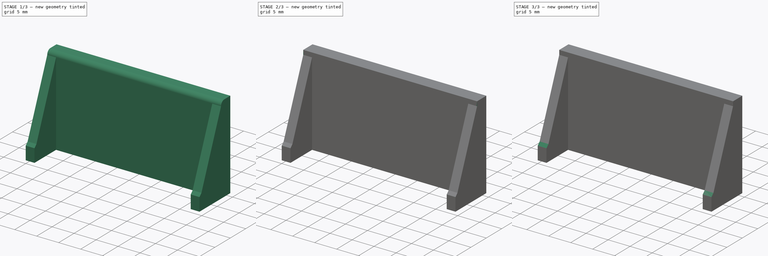
[diagram: build sequence overview — one tinted view per stage of 3, left to right]
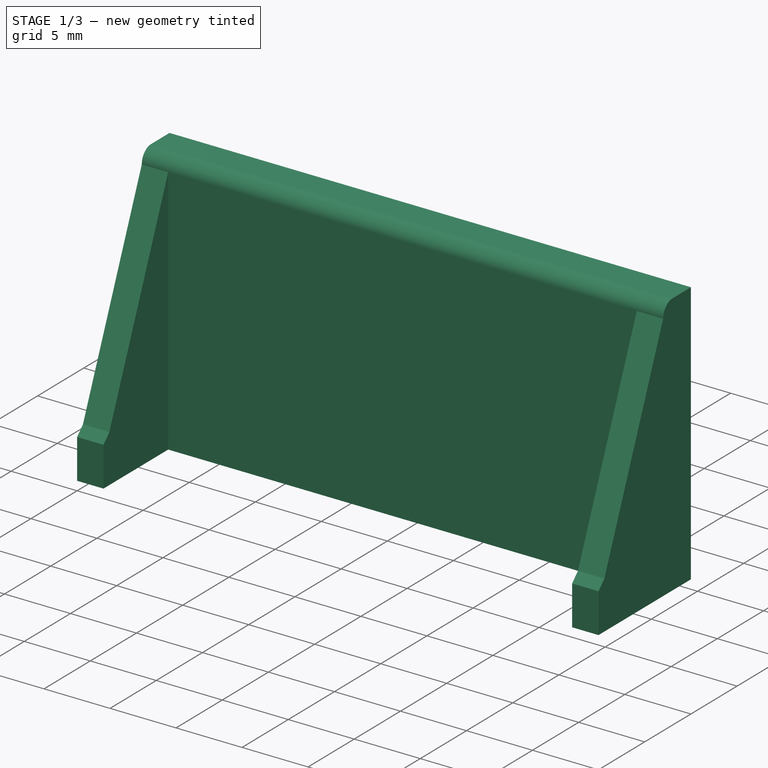
[diagram: stage 1 of 3 — iso view after this stage's code; geometry added in this stage tinted green]
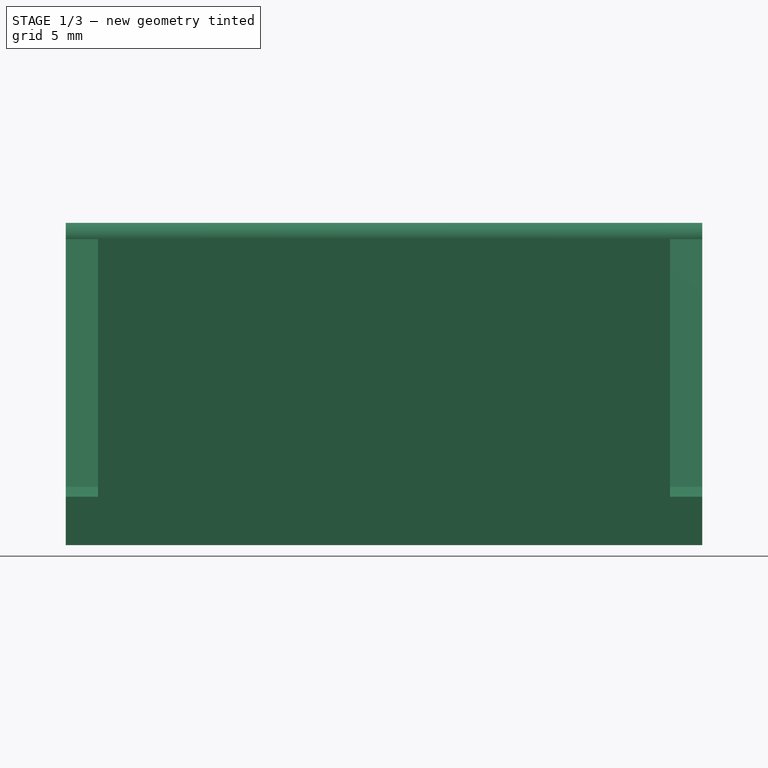
[diagram: stage 1 of 3 — front view after this stage's code; geometry added in this stage tinted green]
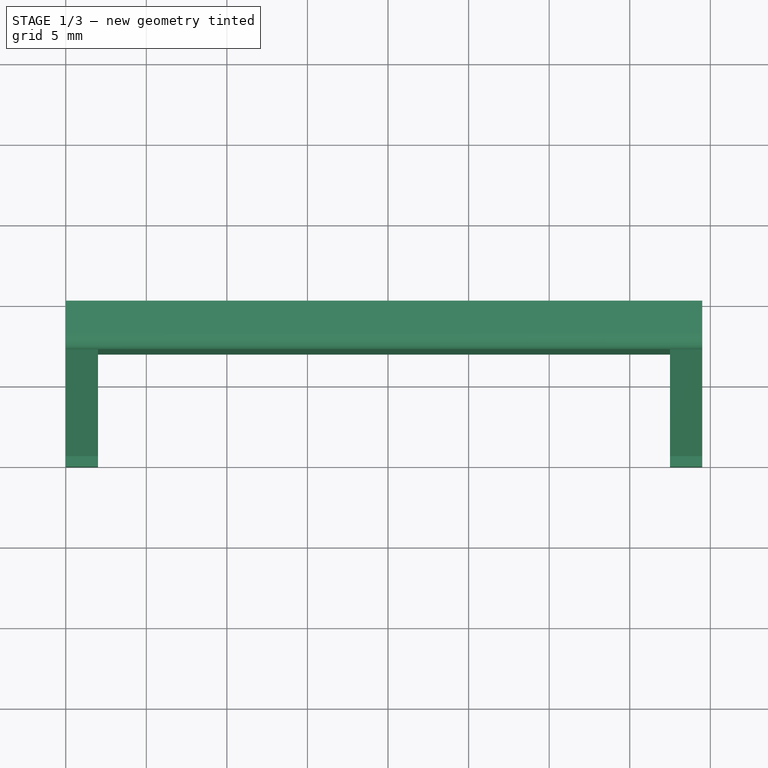
[diagram: stage 1 of 3 — top view after this stage's code; geometry added in this stage tinted green]
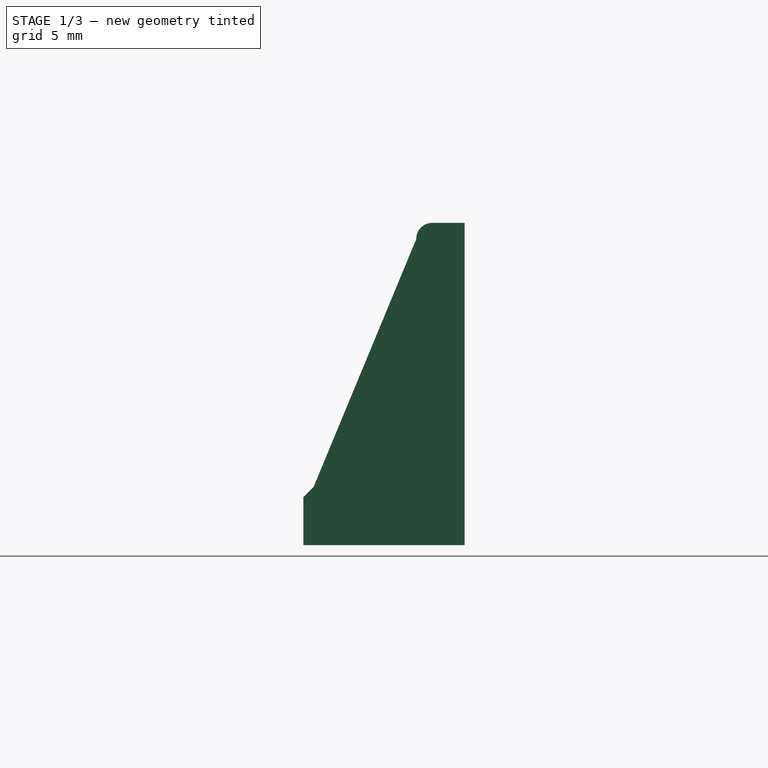
[diagram: stage 1 of 3 — right view after this stage's code; geometry added in this stage tinted green]
FCSTD DOCUMENT  (FreeCAD 0.15R4671 (Git))
Label: tope
License: All rights reserved
LicenseURL: http://en.wikipedia.org/wiki/All_rights_reserved
objects: PartDesign::Chamfer×4, Sketcher::SketchObject×2, PartDesign::Pad×2, Part::FeaturePython×1, Part::Feature×1, PartDesign::Fillet×1
note: 13 computed .brp shape members not serialized (recipe doc carries the construction recipe); baked Part::Feature solids carry a one-line shape summary decoded from their .brp

FEATURE [Part::Feature] Clone001  label="Clone of Chamfer002"
  shape: bbox 39.5 x 10 x 20 mm, 14 faces (baked)
FEATURE [PartDesign::Chamfer] Chamfer002
  Base = -> Clone001 [Edge7]
  Size = 9
FEATURE [PartDesign::Chamfer] Chamfer003
  Base = -> Chamfer002 [Edge7]
  Size = 9
FEATURE [PartDesign::Fillet] Fillet
  Base = -> Chamfer003 [Edge3]
  Radius = 1
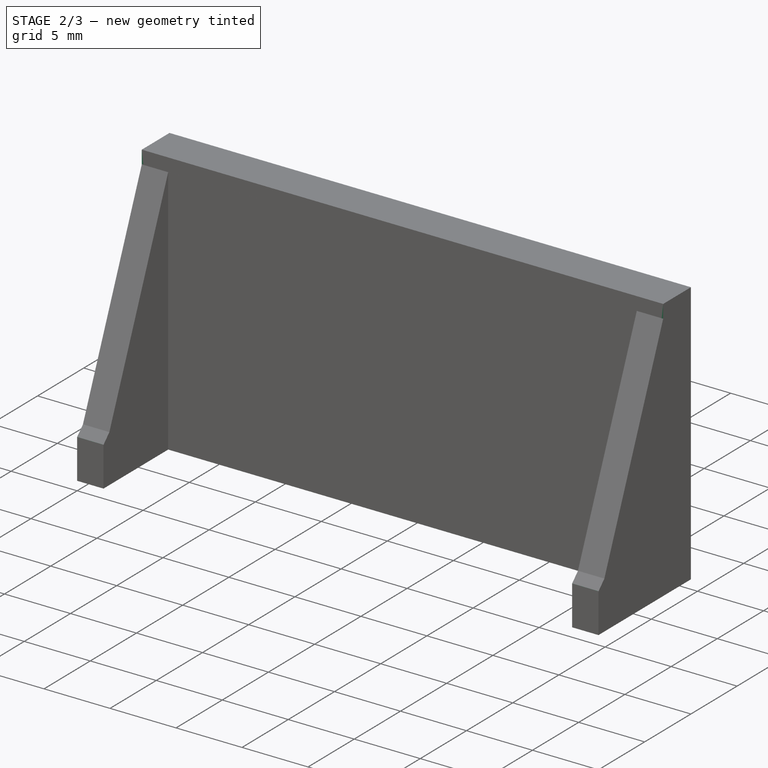
[diagram: stage 2 of 3 — iso view after this stage's code; geometry added in this stage tinted green]
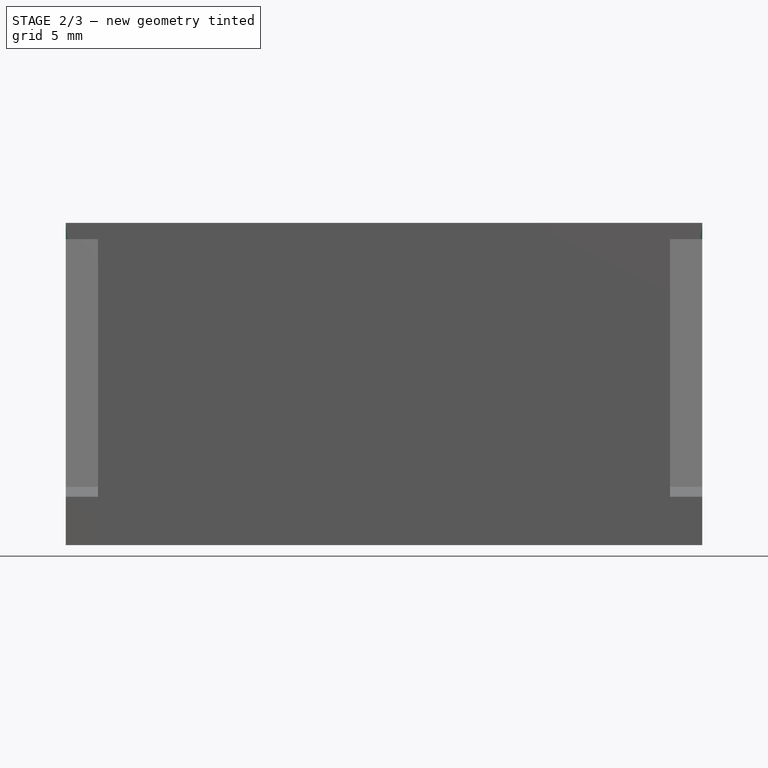
[diagram: stage 2 of 3 — front view after this stage's code; geometry added in this stage tinted green]
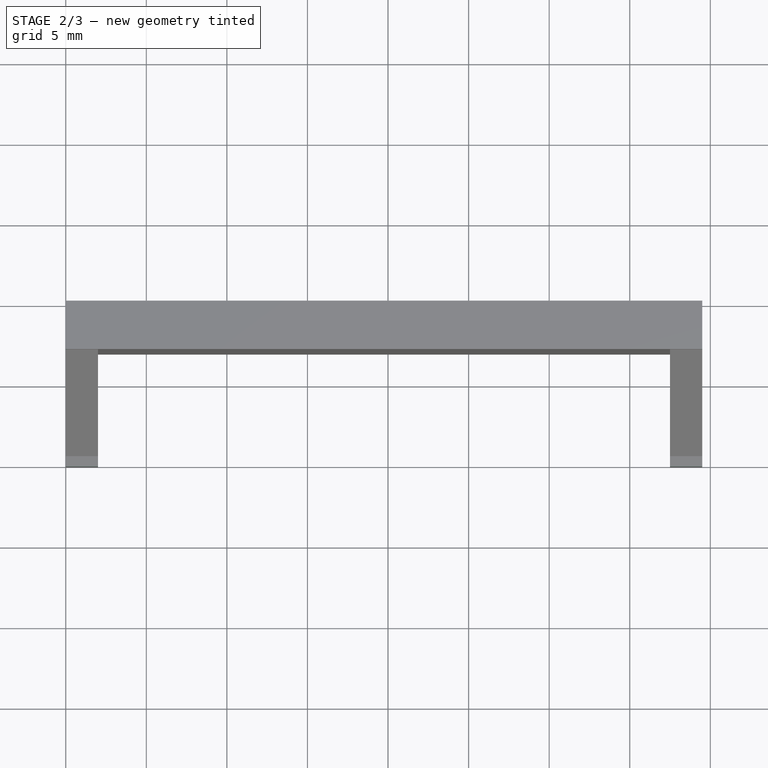
[diagram: stage 2 of 3 — top view after this stage's code; geometry added in this stage tinted green]
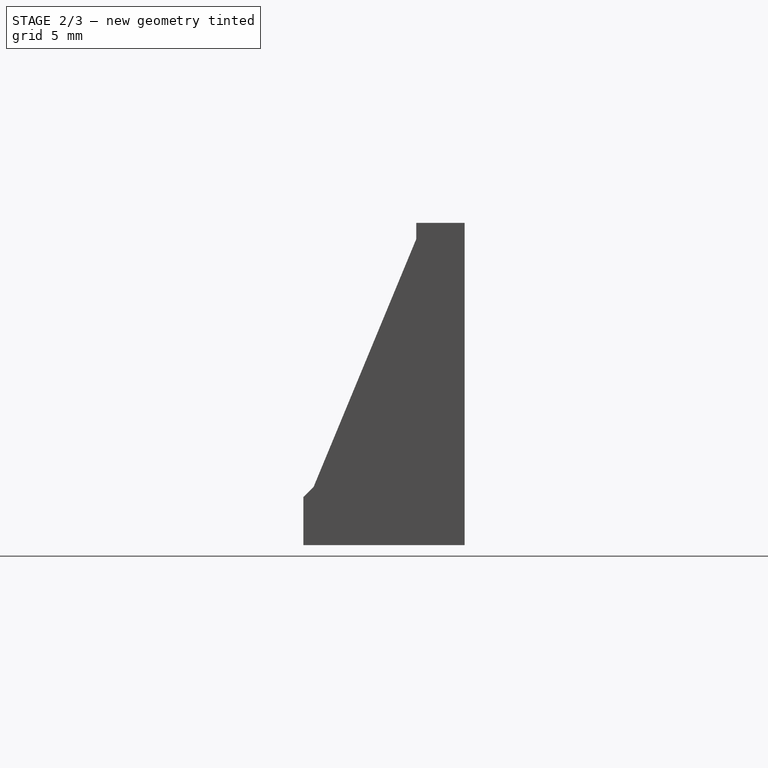
[diagram: stage 2 of 3 — right view after this stage's code; geometry added in this stage tinted green]
FEATURE [Sketcher::SketchObject] Sketch
  Placement = pos=(0,0,0) rot=(1,0,0;1.5708rad)
  sketch-geometry (4):
    g0: LineSegment StartX=0 StartY=20 StartZ=0 EndX=39.5 EndY=20 EndZ=0
    g1: LineSegment StartX=39.5 StartY=20 StartZ=0 EndX=39.5 EndY=0 EndZ=0
    g2: LineSegment StartX=39.5 StartY=0 StartZ=0 EndX=0 EndY=0 EndZ=0
    g3: LineSegment StartX=0 StartY=0 StartZ=0 EndX=0 EndY=20 EndZ=0
  constraints (11):
    c: Coincident(g0,g1)
    c: Coincident(g1,g2)
    c: Coincident(g2,g3)
    c: Coincident(g3,g0)
    c: Horizontal(g0)
    c: Horizontal(g2)
    c: Vertical(g1)
    c: Vertical(g3)
    c: DistanceX(g0) = 39.5
    c: DistanceY(g3) = 20
    c: Coincident(g-1,g2)
FEATURE [PartDesign::Pad] Pad
  Length = 3
  Length2 = 100
  Placement = pos=(0,0,0) rot=(1,0,0;1.5708rad)
  Sketch = -> Sketch
  Type = 0
FEATURE [Sketcher::SketchObject] Sketch001
  ExternalGeometry = -> [Pad]
  Placement = pos=(0,0,0) rot=(1,0,0;3.14159rad)
  Support = -> Pad [Face3]
  sketch-geometry (8):
    g0: LineSegment StartX=37.5 StartY=10 StartZ=0 EndX=39.5 EndY=10 EndZ=0
    g1: LineSegment StartX=39.5 StartY=10 StartZ=0 EndX=39.5 EndY=0 EndZ=0
    g2: LineSegment StartX=39.5 StartY=0 StartZ=0 EndX=37.5 EndY=0 EndZ=0
    g3: LineSegment StartX=37.5 StartY=0 StartZ=0 EndX=37.5 EndY=10 EndZ=0
    g4: LineSegment StartX=2 StartY=10 StartZ=0 EndX=0 EndY=10 EndZ=0
    g5: LineSegment StartX=0 StartY=10 StartZ=0 EndX=0 EndY=0 EndZ=0
    g6: LineSegment StartX=0 StartY=0 StartZ=0 EndX=2 EndY=0 EndZ=0
    g7: LineSegment StartX=2 StartY=0 StartZ=0 EndX=2 EndY=10 EndZ=0
  constraints (22):
    c: Coincident(g0,g1)
    c: Coincident(g1,g2)
    c: Coincident(g2,g3)
    c: Coincident(g3,g0)
    c: Horizontal(g0)
    c: Horizontal(g2)
    c: Vertical(g1)
    c: Vertical(g3)
    c: Coincident(g4,g5)
    c: Coincident(g5,g6)
    c: Coincident(g6,g7)
    c: Coincident(g7,g4)
    c: Horizontal(g4)
    c: Horizontal(g6)
    c: Vertical(g5)
    c: Vertical(g7)
    c: Coincident(g5,g-1)
    c: Coincident(g1,g-3)
    c: DistanceX(g0) = 2
    c: DistanceX(g4) = -2
    c: Equal(g3,g7)
    c: DistanceY(g1) = -10
FEATURE [PartDesign::Pad] Pad001
  Length = 3
  Length2 = 100
  Placement = pos=(0,0,0) rot=(1,0,0;1.5708rad)
  Reversed = true
  Sketch = -> Sketch001
  Type = 0
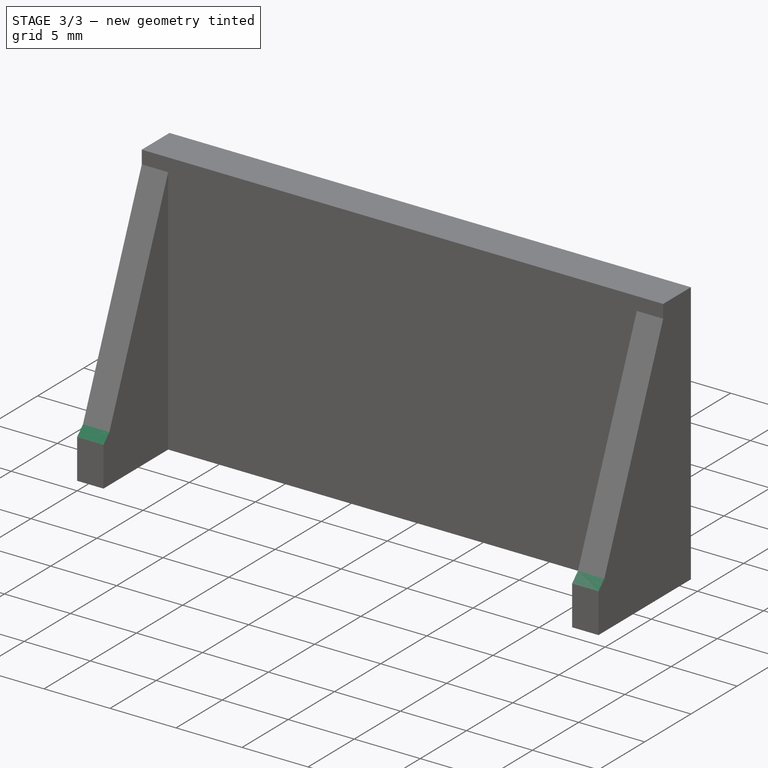
[diagram: stage 3 of 3 — iso view after this stage's code; geometry added in this stage tinted green]
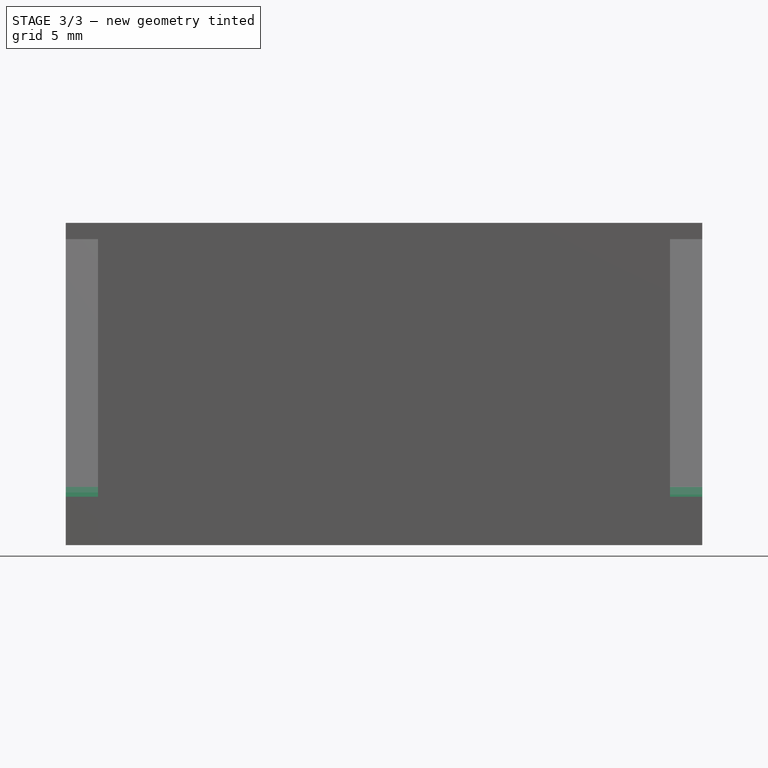
[diagram: stage 3 of 3 — front view after this stage's code; geometry added in this stage tinted green]
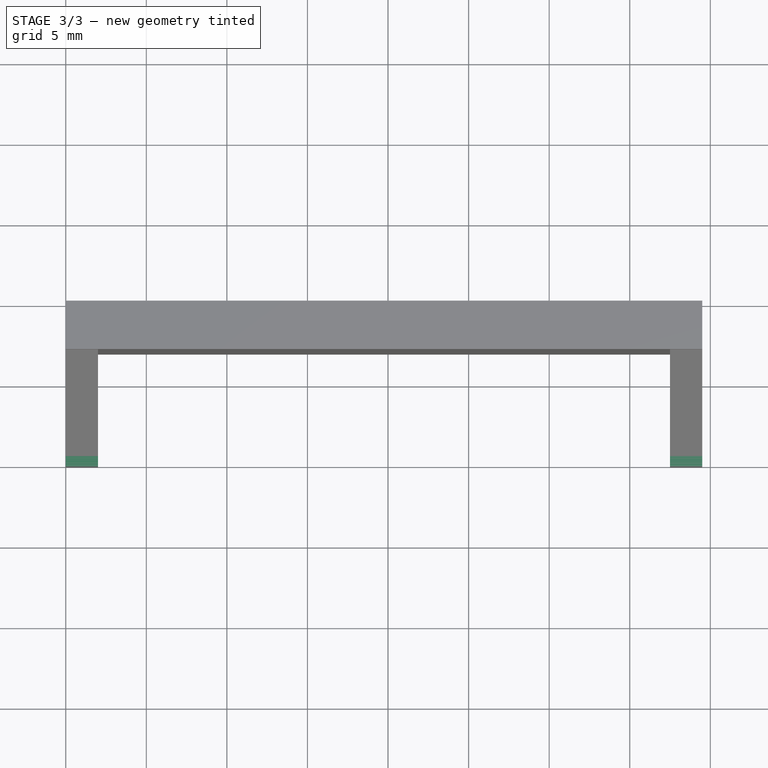
[diagram: stage 3 of 3 — top view after this stage's code; geometry added in this stage tinted green]
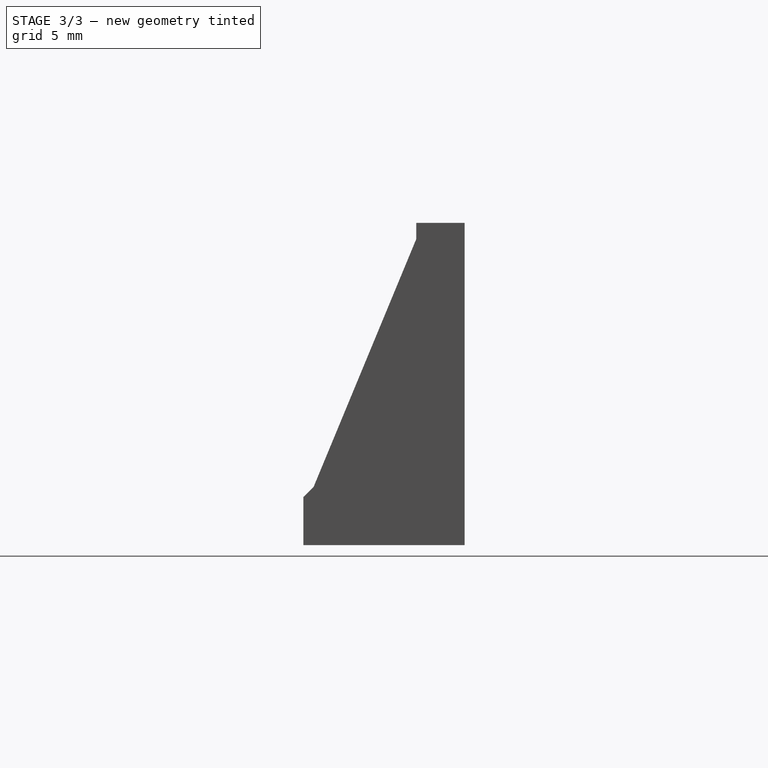
[diagram: stage 3 of 3 — right view after this stage's code; geometry added in this stage tinted green]
FEATURE [PartDesign::Chamfer] Chamfer
  Base = -> Pad001 [Edge16]
  Placement = pos=(0,0,0) rot=(1,0,0;1.5708rad)
  Size = 6.99
FEATURE [PartDesign::Chamfer] Chamfer001
  Base = -> Chamfer [Edge11]
  Placement = pos=(0,0,0) rot=(1,0,0;1.5708rad)
  Size = 6.99
FEATURE [Part::FeaturePython] Clone  label="Clone of Chamfer001"  # Draft clone (typed FeaturePython)
  Objects = -> [Chamfer001]
  Placement = pos=(0,0,0) rot=(1,0,0;1.5708rad)
  Scale = (1,1,1)
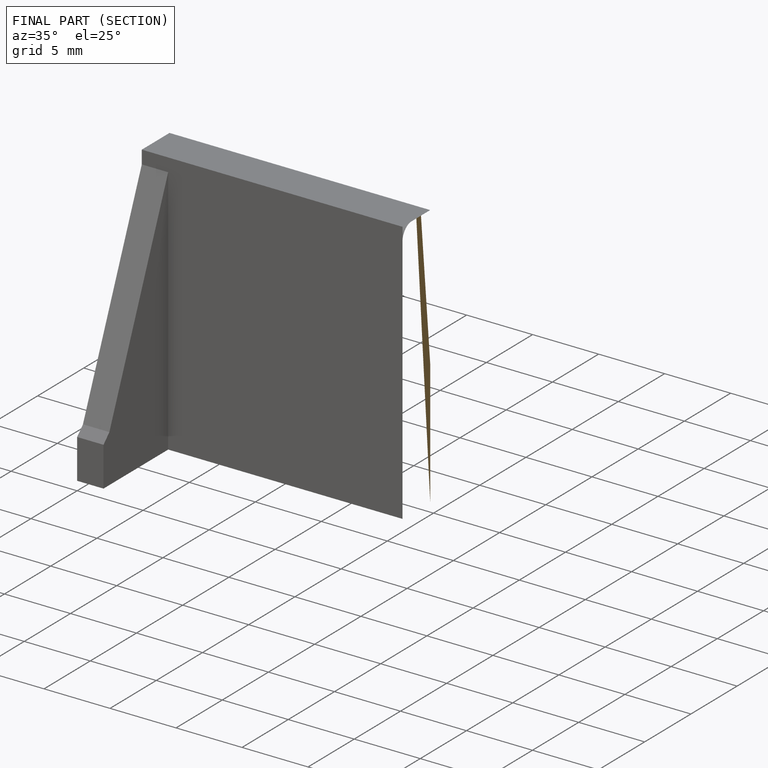
[diagram: finished part — half-section view (interior)]
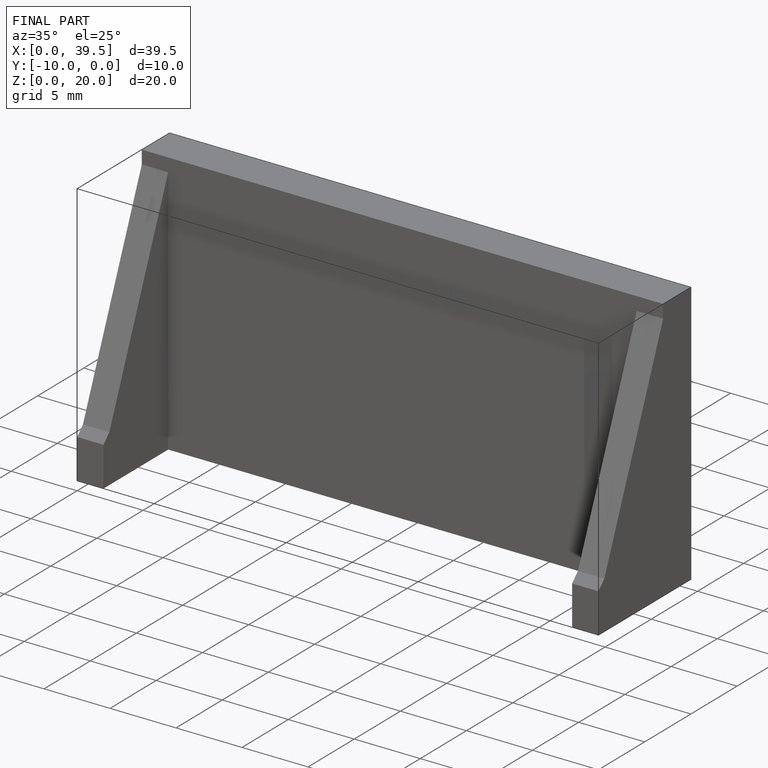
[diagram: finished part — iso view with bounding-box wireframe]
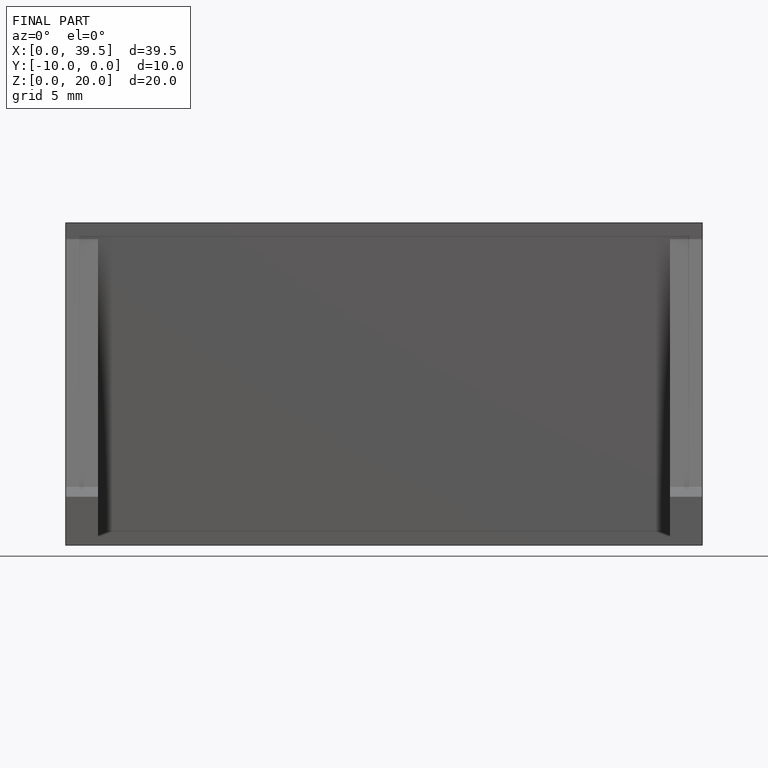
[diagram: finished part — front view with bounding-box wireframe]
